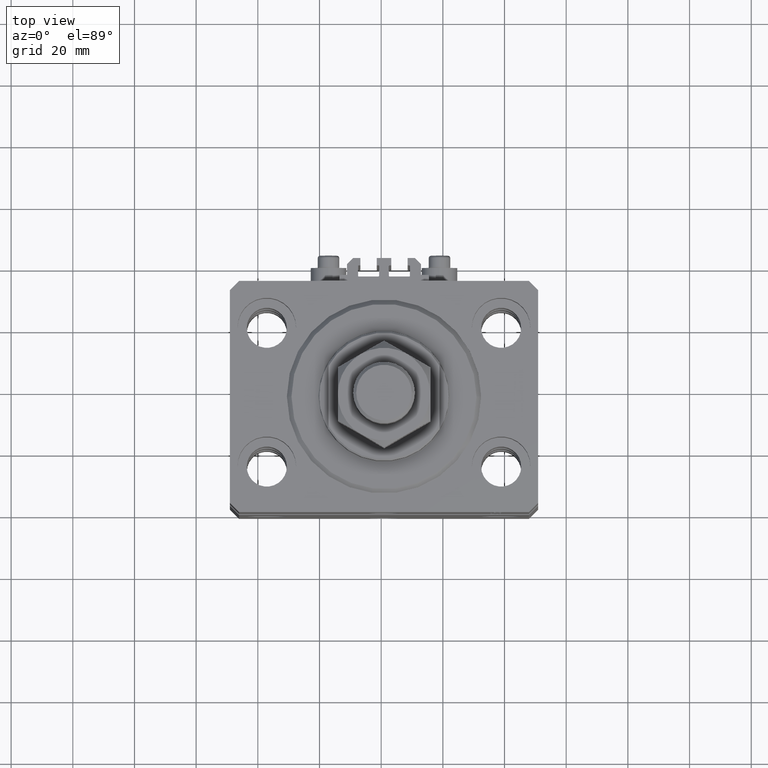
[diagram: clean part render]
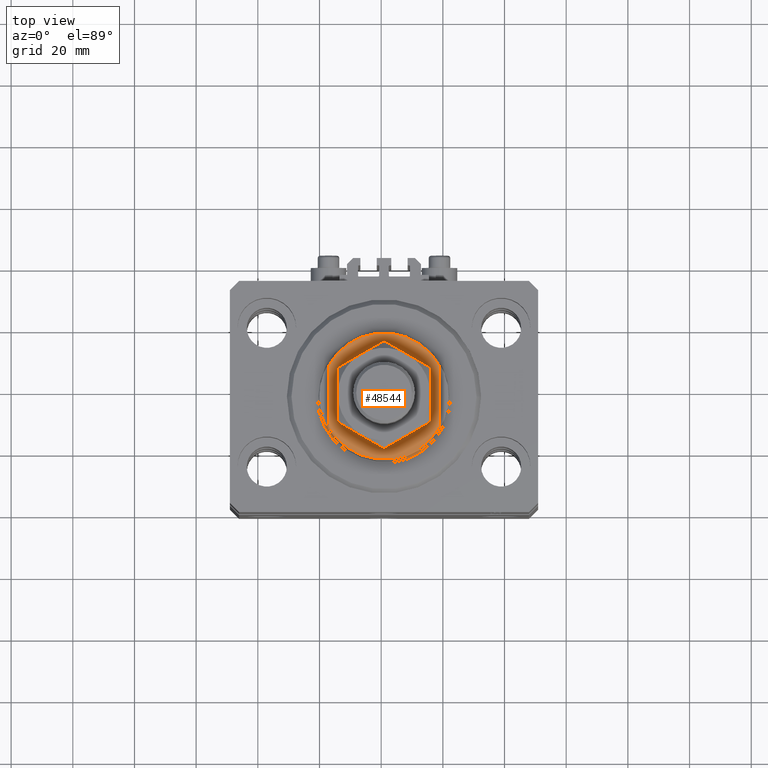
[diagram: same view with one face highlighted and labeled with its STEP entity id]
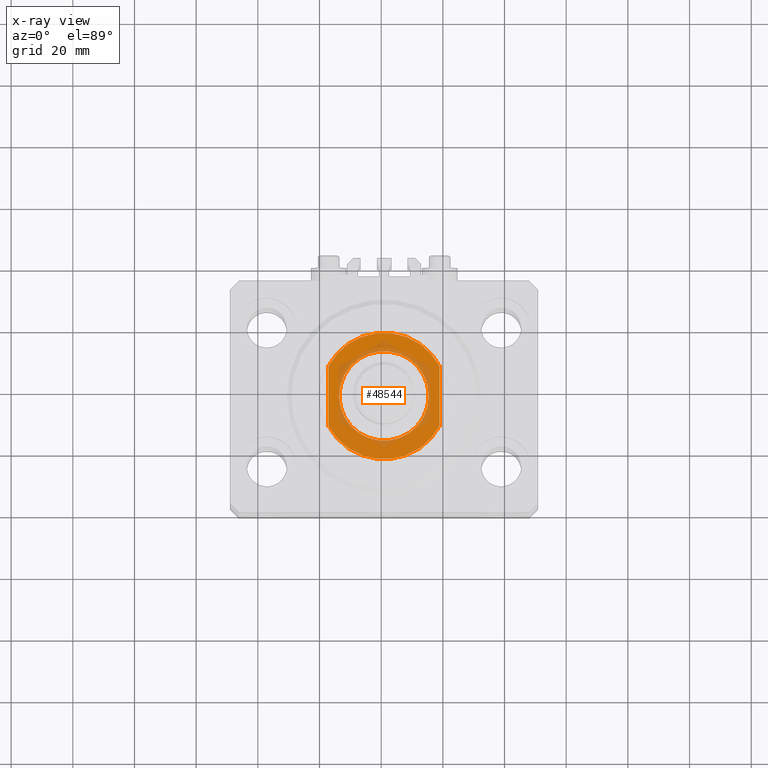
[diagram: x-ray of the same camera — body ghosted, the highlighted face saturated]
A machine part, top view. The second image highlights one B-rep face of the part: STEP entity #48544.
The next image is the same camera in x-ray: the body ghosted, the highlighted face saturated — about 22% of this face is hidden behind the body in this view.
In plain terms, the highlighted planar face has unit normal (0, 0, 1).
Its self-contained STEP definition (entity closure, byte-faithful):
#1191 = CARTESIAN_POINT ( 'NONE',  ( -18.00000000000000000, 9.810708435174332109, -8.000000000000000000 ) ) ;
#1382 = LINE ( 'NONE', #40830, #39535 ) ;
#3280 = DIRECTION ( 'NONE',  ( -1.000000000000000000, 0.000000000000000000, 0.000000000000000000 ) ) ;
#3996 = EDGE_CURVE ( 'NONE', #30026, #27210, #30591, .T. ) ;
#4122 = CARTESIAN_POINT ( 'NONE',  ( 0.000000000000000000, 0.000000000000000000, -8.000000000000000000 ) ) ;
#5897 = FACE_OUTER_BOUND ( 'NONE', #44047, .T. ) ;
#5964 = DIRECTION ( 'NONE',  ( -0.000000000000000000, -1.000000000000000000, -0.000000000000000000 ) ) ;
#9729 = CIRCLE ( 'NONE', #10565, 20.50000000000001776 ) ;
#10565 = AXIS2_PLACEMENT_3D ( 'NONE', #4122, #47356, #27524 ) ;
#12763 = CARTESIAN_POINT ( 'NONE',  ( 18.00000000000000000, -9.810708435174332109, -8.000000000000000000 ) ) ;
#13834 = EDGE_LOOP ( 'NONE', ( #37781, #32625 ) ) ;
#13907 = VERTEX_POINT ( 'NONE', #35401 ) ;
#14833 = EDGE_CURVE ( 'NONE', #31604, #13907, #9729, .T. ) ;
#15196 = DIRECTION ( 'NONE',  ( -1.000000000000000000, 0.000000000000000000, 0.000000000000000000 ) ) ;
#15545 = AXIS2_PLACEMENT_3D ( 'NONE', #39587, #23563, #15196 ) ;
#16164 = DIRECTION ( 'NONE',  ( -0.000000000000000000, -0.000000000000000000, 1.000000000000000000 ) ) ;
#17338 = DIRECTION ( 'NONE',  ( -1.000000000000000000, 0.000000000000000000, -0.000000000000000000 ) ) ;
#17577 = AXIS2_PLACEMENT_3D ( 'NONE', #27854, #16164, #19484 ) ;
#17771 = EDGE_CURVE ( 'NONE', #27210, #30026, #47206, .T. ) ;
#18089 = CARTESIAN_POINT ( 'NONE',  ( 0.000000000000000000, 0.000000000000000000, -8.000000000000000000 ) ) ;
#19020 = VERTEX_POINT ( 'NONE', #21079 ) ;
#19484 = DIRECTION ( 'NONE',  ( -1.000000000000000000, 0.000000000000000000, 0.000000000000000000 ) ) ;
#21079 = CARTESIAN_POINT ( 'NONE',  ( 18.00000000000000000, 9.810708435174332109, -8.000000000000000000 ) ) ;
#23040 = DIRECTION ( 'NONE',  ( 0.000000000000000000, -1.000000000000000000, -0.000000000000000000 ) ) ;
#23246 = CARTESIAN_POINT ( 'NONE',  ( 14.49999999999999822, 1.775737858763662015E-15, -8.000000000000000000 ) ) ;
#23484 = ORIENTED_EDGE ( 'NONE', *, *, #30992, .T. ) ;
#23538 = LINE ( 'NONE', #42625, #36031 ) ;
#23563 = DIRECTION ( 'NONE',  ( -0.000000000000000000, -0.000000000000000000, 1.000000000000000000 ) ) ;
#23590 = EDGE_CURVE ( 'NONE', #19020, #31604, #23538, .T. ) ;
#26232 = DIRECTION ( 'NONE',  ( 0.000000000000000000, 0.000000000000000000, -1.000000000000000000 ) ) ;
#27210 = VERTEX_POINT ( 'NONE', #36864 ) ;
#27509 = AXIS2_PLACEMENT_3D ( 'NONE', #18089, #26232, #17338 ) ;
#27524 = DIRECTION ( 'NONE',  ( -1.000000000000000000, 0.000000000000000000, 0.000000000000000000 ) ) ;
#27773 = AXIS2_PLACEMENT_3D ( 'NONE', #33561, #34582, #3280 ) ;
#27854 = CARTESIAN_POINT ( 'NONE',  ( 0.000000000000000000, 0.000000000000000000, -8.000000000000000000 ) ) ;
#30026 = VERTEX_POINT ( 'NONE', #23246 ) ;
#30591 = CIRCLE ( 'NONE', #17577, 14.49999999999999822 ) ;
#30992 = EDGE_CURVE ( 'NONE', #36290, #19020, #48914, .T. ) ;
#31604 = VERTEX_POINT ( 'NONE', #12763 ) ;
#32625 = ORIENTED_EDGE ( 'NONE', *, *, #3996, .T. ) ;
#33244 = ORIENTED_EDGE ( 'NONE', *, *, #14833, .T. ) ;
#33561 = CARTESIAN_POINT ( 'NONE',  ( 0.000000000000000000, 0.000000000000000000, -8.000000000000000000 ) ) ;
#34582 = DIRECTION ( 'NONE',  ( 0.000000000000000000, 0.000000000000000000, -1.000000000000000000 ) ) ;
#35401 = CARTESIAN_POINT ( 'NONE',  ( -18.00000000000000000, -9.810708435174332109, -8.000000000000000000 ) ) ;
#36031 = VECTOR ( 'NONE', #23040, 1000.000000000000000 ) ;
#36290 = VERTEX_POINT ( 'NONE', #1191 ) ;
#36864 = CARTESIAN_POINT ( 'NONE',  ( -14.49999999999999822, 0.000000000000000000, -8.000000000000000000 ) ) ;
#37444 = PLANE ( 'NONE',  #27509 ) ;
#37781 = ORIENTED_EDGE ( 'NONE', *, *, #17771, .T. ) ;
#39535 = VECTOR ( 'NONE', #5964, 1000.000000000000000 ) ;
#39587 = CARTESIAN_POINT ( 'NONE',  ( 0.000000000000000000, 0.000000000000000000, -8.000000000000000000 ) ) ;
#40761 = FACE_BOUND ( 'NONE', #13834, .T. ) ;
#40830 = CARTESIAN_POINT ( 'NONE',  ( -18.00000000000000000, -41.24318125460256113, -8.000000000000000000 ) ) ;
#42134 = ORIENTED_EDGE ( 'NONE', *, *, #23590, .T. ) ;
#42625 = CARTESIAN_POINT ( 'NONE',  ( 18.00000000000000000, -41.24318125460256113, -8.000000000000000000 ) ) ;
#43126 = ORIENTED_EDGE ( 'NONE', *, *, #44424, .F. ) ;
#44047 = EDGE_LOOP ( 'NONE', ( #23484, #42134, #33244, #43126 ) ) ;
#44424 = EDGE_CURVE ( 'NONE', #36290, #13907, #1382, .T. ) ;
#47206 = CIRCLE ( 'NONE', #15545, 14.49999999999999822 ) ;
#47356 = DIRECTION ( 'NONE',  ( 0.000000000000000000, 0.000000000000000000, -1.000000000000000000 ) ) ;
#48544 = ADVANCED_FACE ( 'NONE', ( #40761, #5897 ), #37444, .T. ) ;
#48914 = CIRCLE ( 'NONE', #27773, 20.50000000000001776 ) ;